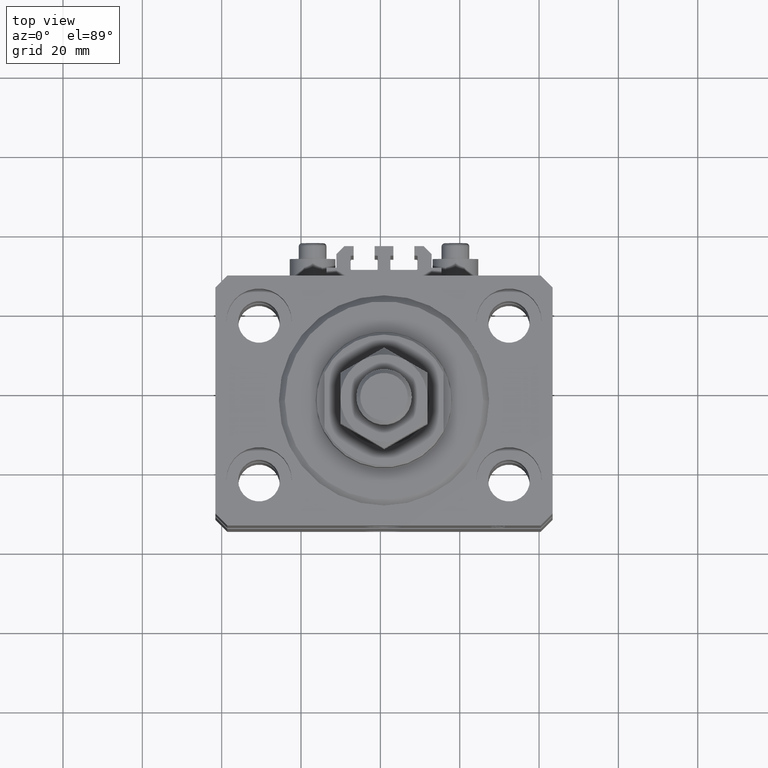
[diagram: clean part render]
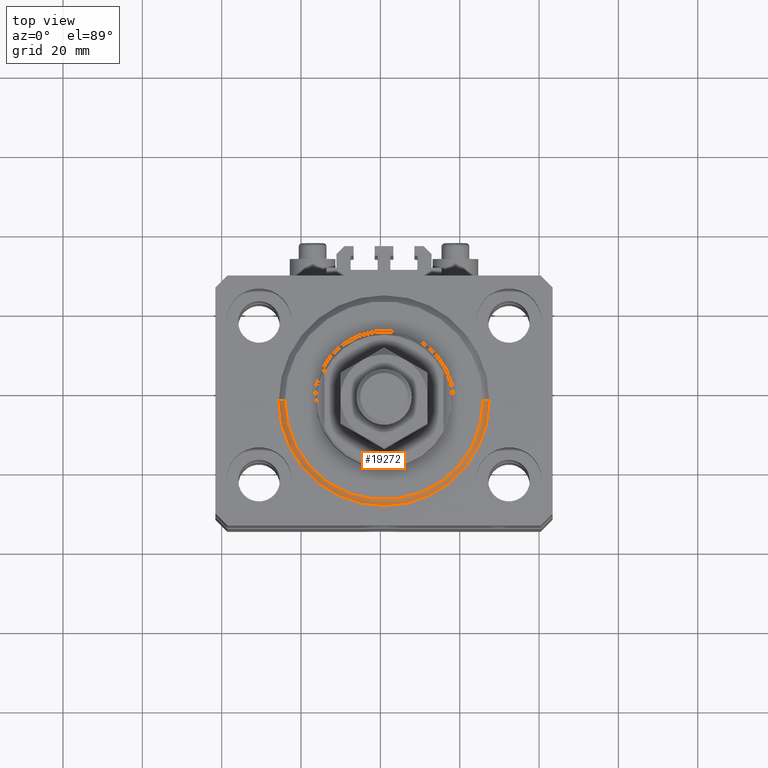
[diagram: same view with one face highlighted and labeled with its STEP entity id]
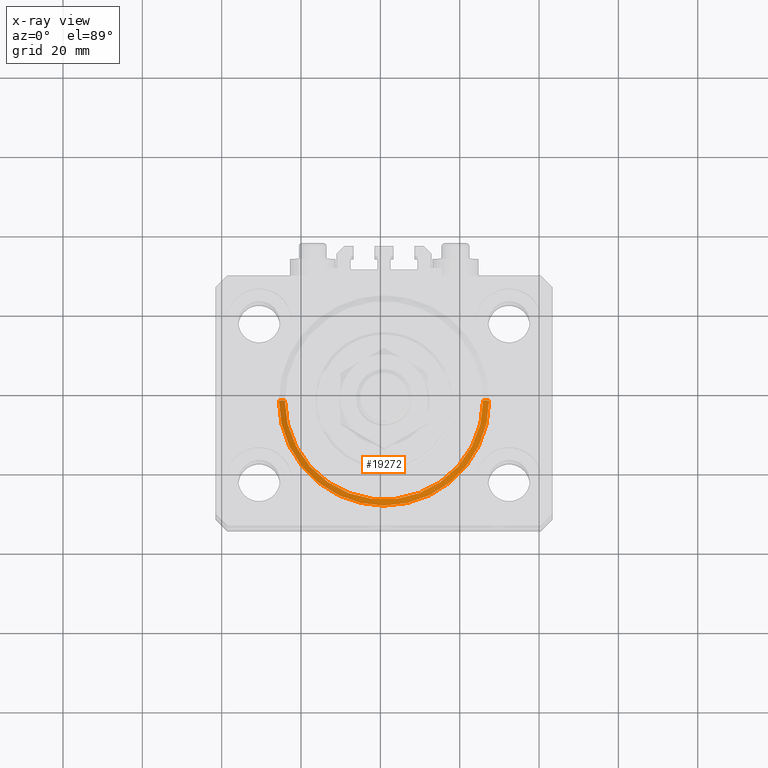
[diagram: x-ray of the same camera — body ghosted, the highlighted face saturated]
A machine part, top view. The second image highlights one B-rep face of the part: STEP entity #19272.
The next image is the same camera in x-ray: the body ghosted, the highlighted face saturated — about 0% of this face is hidden behind the body in this view.
In plain terms, the highlighted conical surface has half-angle 45 deg.
Its self-contained STEP definition (entity closure, byte-faithful):
#1004 = VERTEX_POINT ( 'NONE', #16606 ) ;
#1274 = DIRECTION ( 'NONE',  ( 1.000000000000000000, 0.000000000000000000, 0.000000000000000000 ) ) ;
#2534 = CIRCLE ( 'NONE', #33454, 26.50000000000000355 ) ;
#5315 = LINE ( 'NONE', #47066, #9327 ) ;
#5884 = CONICAL_SURFACE ( 'NONE', #43992, 26.50000000000000355, 0.7853981633974506105 ) ;
#7942 = ORIENTED_EDGE ( 'NONE', *, *, #30247, .F. ) ;
#9068 = DIRECTION ( 'NONE',  ( -0.000000000000000000, -0.000000000000000000, 1.000000000000000000 ) ) ;
#9327 = VECTOR ( 'NONE', #13018, 1000.000000000000000 ) ;
#9793 = CARTESIAN_POINT ( 'NONE',  ( 0.000000000000000000, 0.000000000000000000, 1.500000000000046407 ) ) ;
#11340 = EDGE_LOOP ( 'NONE', ( #7942, #19675, #36630, #37823 ) ) ;
#12945 = FACE_OUTER_BOUND ( 'NONE', #11340, .T. ) ;
#13018 = DIRECTION ( 'NONE',  ( -0.7071067811865491270, 8.659560562354952580E-17, 0.7071067811865459074 ) ) ;
#13917 = EDGE_CURVE ( 'NONE', #32983, #14752, #2534, .T. ) ;
#14456 = CARTESIAN_POINT ( 'NONE',  ( -26.50000000000000355, 0.000000000000000000, 1.500000000000046407 ) ) ;
#14752 = VERTEX_POINT ( 'NONE', #42702 ) ;
#15586 = VECTOR ( 'NONE', #48614, 1000.000000000000000 ) ;
#16606 = CARTESIAN_POINT ( 'NONE',  ( -24.99999999999995026, 3.153465507804431248E-15, 0.000000000000000000 ) ) ;
#18067 = CARTESIAN_POINT ( 'NONE',  ( 0.000000000000000000, 0.000000000000000000, 1.500000000000046407 ) ) ;
#19272 = ADVANCED_FACE ( 'NONE', ( #12945 ), #5884, .T. ) ;
#19675 = ORIENTED_EDGE ( 'NONE', *, *, #23355, .F. ) ;
#20910 = VERTEX_POINT ( 'NONE', #35554 ) ;
#21536 = DIRECTION ( 'NONE',  ( -0.000000000000000000, -0.000000000000000000, 1.000000000000000000 ) ) ;
#23355 = EDGE_CURVE ( 'NONE', #20910, #1004, #42420, .T. ) ;
#24940 = DIRECTION ( 'NONE',  ( 1.000000000000000000, 0.000000000000000000, 0.000000000000000000 ) ) ;
#27810 = DIRECTION ( 'NONE',  ( -0.000000000000000000, -0.000000000000000000, -1.000000000000000000 ) ) ;
#30247 = EDGE_CURVE ( 'NONE', #1004, #32983, #5315, .T. ) ;
#31273 = DIRECTION ( 'NONE',  ( 1.000000000000000000, 0.000000000000000000, 0.000000000000000000 ) ) ;
#32983 = VERTEX_POINT ( 'NONE', #14456 ) ;
#33426 = CARTESIAN_POINT ( 'NONE',  ( 26.50000000000000355, 0.000000000000000000, 1.500000000000046407 ) ) ;
#33454 = AXIS2_PLACEMENT_3D ( 'NONE', #9793, #9068, #24940 ) ;
#35554 = CARTESIAN_POINT ( 'NONE',  ( 24.99999999999995026, 0.000000000000000000, 0.000000000000000000 ) ) ;
#36630 = ORIENTED_EDGE ( 'NONE', *, *, #40372, .T. ) ;
#36935 = LINE ( 'NONE', #33426, #15586 ) ;
#37823 = ORIENTED_EDGE ( 'NONE', *, *, #13917, .F. ) ;
#40372 = EDGE_CURVE ( 'NONE', #20910, #14752, #36935, .T. ) ;
#42420 = CIRCLE ( 'NONE', #43219, 24.99999999999995026 ) ;
#42702 = CARTESIAN_POINT ( 'NONE',  ( 26.50000000000000355, 3.245314017740485765E-15, 1.500000000000046407 ) ) ;
#43219 = AXIS2_PLACEMENT_3D ( 'NONE', #46719, #27810, #31273 ) ;
#43992 = AXIS2_PLACEMENT_3D ( 'NONE', #18067, #21536, #1274 ) ;
#46719 = CARTESIAN_POINT ( 'NONE',  ( 0.000000000000000000, 0.000000000000000000, 0.000000000000000000 ) ) ;
#47066 = CARTESIAN_POINT ( 'NONE',  ( -26.50000000000000355, 3.245314017740486554E-15, 1.500000000000046407 ) ) ;
#48614 = DIRECTION ( 'NONE',  ( 0.7071067811865491270, 0.000000000000000000, 0.7071067811865459074 ) ) ;